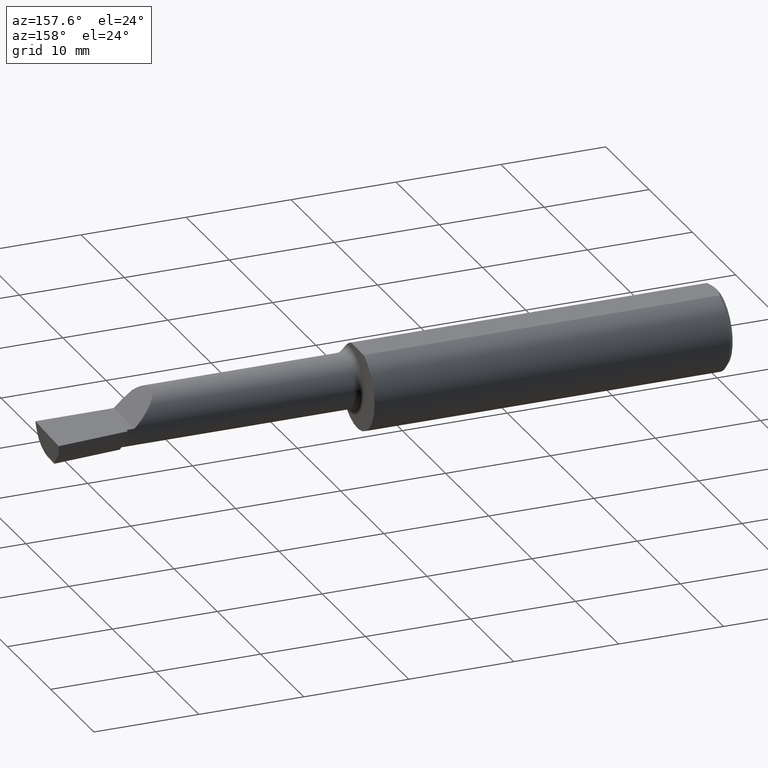
[diagram: clean part render]
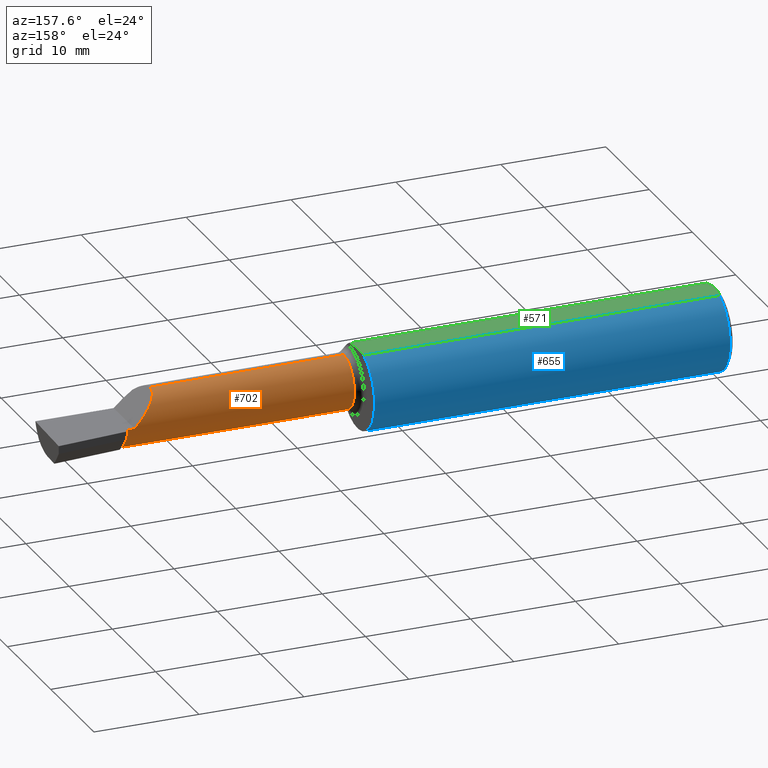
[diagram: same view with three faces highlighted in distinct colors, each labeled with its STEP entity id]
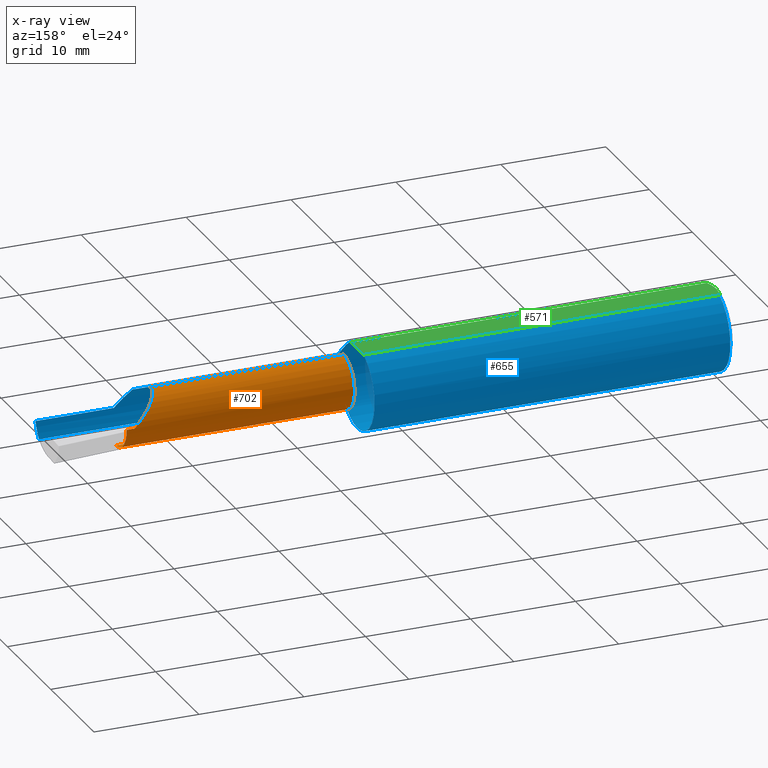
[diagram: x-ray of the same camera — body ghosted, the three highlighted faces saturated]
A machine part, auxiliary view with three faces highlighted in distinct colors.
The next image is the same camera in x-ray (body ghosted, the three faces saturated) — at least one of them is partly hidden behind the body in this view.
Their STEP definitions:

[orange] entity #702 — the highlighted cylindrical surface (edge-blend (fillet) strip) has radius 2.5375 mm, axis along (-1, -0, -0).
#5 = CARTESIAN_POINT ( 'NONE',  ( 1.375000000000000000, -0.06599999999999997535, -0.09989999999999990554 ) ) ;
#21 = ORIENTED_EDGE ( 'NONE', *, *, #39, .T. ) ;
#25 = LINE ( 'NONE', #301, #458 ) ;
#35 = VERTEX_POINT ( 'NONE', #5 ) ;
#39 = EDGE_CURVE ( 'NONE', #432, #308, #25, .T. ) ;
#62 = ORIENTED_EDGE ( 'NONE', *, *, #279, .T. ) ;
#75 = CIRCLE ( 'NONE', #510, 0.09989999999999993330 ) ;
#79 = DIRECTION ( 'NONE',  ( 1.000000000000000000, 0.0000000000000000000, 0.0000000000000000000 ) ) ;
#97 = DIRECTION ( 'NONE',  ( -1.000000000000000000, -0.0000000000000000000, -0.0000000000000000000 ) ) ;
#104 = DIRECTION ( 'NONE',  ( -1.000000000000000000, -0.0000000000000000000, -0.0000000000000000000 ) ) ;
#107 = CARTESIAN_POINT ( 'NONE',  ( 1.375000000000000000, -0.06599999999999998923, 0.09989999999999990554 ) ) ;
#126 = ORIENTED_EDGE ( 'NONE', *, *, #266, .F. ) ;
#138 = CARTESIAN_POINT ( 'NONE',  ( 2.100099999999998523, -0.007479934881072268678, 0.09989999999999990554 ) ) ;
#150 = CARTESIAN_POINT ( 'NONE',  ( 2.229999999999999982, -0.06599999999999998923, 0.0000000000000000000 ) ) ;
#179 = CARTESIAN_POINT ( 'NONE',  ( 2.200000000000000178, 0.03389999999999987468, 9.797174393178826150E-17 ) ) ;
#184 = LINE ( 'NONE', #361, #598 ) ;
#185 = AXIS2_PLACEMENT_3D ( 'NONE', #512, #104, #462 ) ;
#201 = CIRCLE ( 'NONE', #185, 0.09989999999999990554 ) ;
#203 = DIRECTION ( 'NONE',  ( 0.0000000000000000000, 0.0000000000000000000, 1.000000000000000000 ) ) ;
#232 = EDGE_CURVE ( 'NONE', #449, #35, #201, .T. ) ;
#236 = DIRECTION ( 'NONE',  ( -1.000000000000000000, -0.0000000000000000000, -0.0000000000000000000 ) ) ;
#261 = DIRECTION ( 'NONE',  ( -1.000000000000000000, -0.0000000000000000000, -0.0000000000000000000 ) ) ;
#266 = EDGE_CURVE ( 'NONE', #610, #449, #184, .T. ) ;
#279 = EDGE_CURVE ( 'NONE', #297, #35, #481, .T. ) ;
#290 = DIRECTION ( 'NONE',  ( 1.000000000000000000, 0.0000000000000000000, 0.0000000000000000000 ) ) ;
#294 = ORIENTED_EDGE ( 'NONE', *, *, #675, .T. ) ;
#297 = VERTEX_POINT ( 'NONE', #357 ) ;
#301 = CARTESIAN_POINT ( 'NONE',  ( 3.121792066109142165E-32, 0.03389999999999990937, 3.155924005931204823E-16 ) ) ;
#308 = VERTEX_POINT ( 'NONE', #406 ) ;
#338 = DIRECTION ( 'NONE',  ( -1.000000000000000000, -0.0000000000000000000, -0.0000000000000000000 ) ) ;
#343 = CARTESIAN_POINT ( 'NONE',  ( 2.229999999999999982, 0.02031953758082122655, -0.05028864118101800118 ) ) ;
#346 = CARTESIAN_POINT ( 'NONE',  ( 2.229999999999999982, -0.06599999999999998923, 0.0000000000000000000 ) ) ;
#357 = CARTESIAN_POINT ( 'NONE',  ( 2.229999999999999982, -0.06599999999999998923, -0.09990000000000000269 ) ) ;
#361 = CARTESIAN_POINT ( 'NONE',  ( 0.0000000000000000000, -0.06599999999999998923, 0.09989999999999991942 ) ) ;
#377 = VERTEX_POINT ( 'NONE', #343 ) ;
#381 = EDGE_CURVE ( 'NONE', #527, #377, #670, .T. ) ;
#391 = EDGE_CURVE ( 'NONE', #527, #297, #424, .T. ) ;
#404 = DIRECTION ( 'NONE',  ( 0.0000000000000000000, 0.0000000000000000000, 1.000000000000000000 ) ) ;
#406 = CARTESIAN_POINT ( 'NONE',  ( 2.229999999999999982, 0.03389999999999996488, 3.155924005931206302E-16 ) ) ;
#424 = CIRCLE ( 'NONE', #582, 0.09989999999999993330 ) ;
#432 = VERTEX_POINT ( 'NONE', #179 ) ;
#437 = ORIENTED_EDGE ( 'NONE', *, *, #381, .F. ) ;
#444 = DIRECTION ( 'NONE',  ( 0.0000000000000000000, -3.589139631315664435E-15, 1.000000000000000000 ) ) ;
#446 = FACE_OUTER_BOUND ( 'NONE', #461, .T. ) ;
#449 = VERTEX_POINT ( 'NONE', #107 ) ;
#456 = CARTESIAN_POINT ( 'NONE',  ( 0.0000000000000000000, -0.06599999999999998923, -0.09989999999999991942 ) ) ;
#458 = VECTOR ( 'NONE', #290, 39.37007874015748143 ) ;
#461 = EDGE_LOOP ( 'NONE', ( #603, #62, #635, #126, #294, #21, #589, #437 ) ) ;
#462 = DIRECTION ( 'NONE',  ( 0.0000000000000000000, 0.0000000000000000000, 1.000000000000000000 ) ) ;
#481 = LINE ( 'NONE', #456, #706 ) ;
#486 = CARTESIAN_POINT ( 'NONE',  ( 2.100099999999998968, -0.06599999999999998923, 0.09989999999999991942 ) ) ;
#510 = AXIS2_PLACEMENT_3D ( 'NONE', #346, #683, #404 ) ;
#512 = CARTESIAN_POINT ( 'NONE',  ( 1.375000000000000000, -0.06599999999999998923, 0.0000000000000000000 ) ) ;
#520 =( BOUNDED_CURVE ( )  B_SPLINE_CURVE ( 3, ( #486, #138, #673, #544 ),
 .UNSPECIFIED., .F., .F. ) 
 B_SPLINE_CURVE_WITH_KNOTS ( ( 4, 4 ),
 ( 0.0000000000000000000, 1.570796326794896114 ),
 .UNSPECIFIED. ) 
 CURVE ( )  GEOMETRIC_REPRESENTATION_ITEM ( )  RATIONAL_B_SPLINE_CURVE ( ( 1.000000000000000000, 0.8047378541243650485, 0.8047378541243650485, 1.000000000000000000 ) ) 
 REPRESENTATION_ITEM ( '' )  );
#527 = VERTEX_POINT ( 'NONE', #661 ) ;
#544 = CARTESIAN_POINT ( 'NONE',  ( 2.200000000000000178, 0.03389999999999987468, 9.797174393178826150E-17 ) ) ;
#556 = AXIS2_PLACEMENT_3D ( 'NONE', #150, #79, #444 ) ;
#559 = EDGE_CURVE ( 'NONE', #308, #377, #75, .T. ) ;
#566 = CYLINDRICAL_SURFACE ( 'NONE', #570, 0.09989999999999991942 ) ;
#570 = AXIS2_PLACEMENT_3D ( 'NONE', #579, #261, #203 ) ;
#579 = CARTESIAN_POINT ( 'NONE',  ( 0.0000000000000000000, -0.06599999999999998923, 0.0000000000000000000 ) ) ;
#582 = AXIS2_PLACEMENT_3D ( 'NONE', #680, #338, #638 ) ;
#589 = ORIENTED_EDGE ( 'NONE', *, *, #559, .T. ) ;
#598 = VECTOR ( 'NONE', #236, 39.37007874015748143 ) ;
#602 = CARTESIAN_POINT ( 'NONE',  ( 2.100099999999998968, -0.06599999999999998923, 0.09989999999999991942 ) ) ;
#603 = ORIENTED_EDGE ( 'NONE', *, *, #391, .T. ) ;
#610 = VERTEX_POINT ( 'NONE', #602 ) ;
#635 = ORIENTED_EDGE ( 'NONE', *, *, #232, .F. ) ;
#638 = DIRECTION ( 'NONE',  ( 0.0000000000000000000, 0.0000000000000000000, 1.000000000000000000 ) ) ;
#661 = CARTESIAN_POINT ( 'NONE',  ( 2.229999999999999982, -0.01311981690363747156, -0.08475668844224130971 ) ) ;
#670 = CIRCLE ( 'NONE', #556, 0.09989999999999991942 ) ;
#673 = CARTESIAN_POINT ( 'NONE',  ( 2.141479934881071578, 0.03389999999999987468, 0.05852006511892780122 ) ) ;
#675 = EDGE_CURVE ( 'NONE', #610, #432, #520, .T. ) ;
#680 = CARTESIAN_POINT ( 'NONE',  ( 2.229999999999999982, -0.06599999999999998923, 0.0000000000000000000 ) ) ;
#683 = DIRECTION ( 'NONE',  ( -1.000000000000000000, -0.0000000000000000000, -0.0000000000000000000 ) ) ;
#702 = ADVANCED_FACE ( 'NONE', ( #446 ), #566, .T. ) ;
#706 = VECTOR ( 'NONE', #97, 39.37007874015748143 ) ;

[blue] entity #655 — the highlighted cylindrical surface (partial cylindrical patch) has radius 3.9649 mm, axis along (-1, -0, -0).
#4 = LINE ( 'NONE', #586, #578 ) ;
#17 = ORIENTED_EDGE ( 'NONE', *, *, #584, .T. ) ;
#20 = EDGE_CURVE ( 'NONE', #376, #333, #214, .T. ) ;
#34 = DIRECTION ( 'NONE',  ( -1.000000000000000000, -0.0000000000000000000, -0.0000000000000000000 ) ) ;
#42 = LINE ( 'NONE', #351, #634 ) ;
#50 =( BOUNDED_CURVE ( )  B_SPLINE_CURVE ( 3, ( #451, #154, #554, #229 ),
 .UNSPECIFIED., .F., .T. ) 
 B_SPLINE_CURVE_WITH_KNOTS ( ( 4, 4 ),
 ( 0.9323538202062678915, 1.360746882514633382 ),
 .UNSPECIFIED. ) 
 CURVE ( )  GEOMETRIC_REPRESENTATION_ITEM ( )  RATIONAL_B_SPLINE_CURVE ( ( 1.000000000000000000, 0.9847649979006014576, 0.9847649979006014576, 1.000000000000000000 ) ) 
 REPRESENTATION_ITEM ( '' )  );
#51 = EDGE_CURVE ( 'NONE', #333, #411, #305, .T. ) ;
#53 = DIRECTION ( 'NONE',  ( -1.000000000000000000, -0.0000000000000000000, -0.0000000000000000000 ) ) ;
#60 = DIRECTION ( 'NONE',  ( 1.000000000000000000, 0.0000000000000000000, 0.0000000000000000000 ) ) ;
#61 = LINE ( 'NONE', #161, #384 ) ;
#63 = CARTESIAN_POINT ( 'NONE',  ( 2.200000000000000178, -0.1560999999999999888, 9.797174393178826150E-17 ) ) ;
#64 = CARTESIAN_POINT ( 'NONE',  ( 2.200000000000000178, -0.1560999999999999888, 9.797174393178826150E-17 ) ) ;
#80 = CIRCLE ( 'NONE', #538, 0.1560999999999999888 ) ;
#81 = CARTESIAN_POINT ( 'NONE',  ( 0.0000000000000000000, 0.0000000000000000000, 0.0000000000000000000 ) ) ;
#84 = DIRECTION ( 'NONE',  ( -1.000000000000000000, -0.0000000000000000000, -0.0000000000000000000 ) ) ;
#87 = CARTESIAN_POINT ( 'NONE',  ( 1.350000000000000089, -0.09941818181818193323, -0.1203463132961160309 ) ) ;
#89 = CARTESIAN_POINT ( 'NONE',  ( 1.375000000000000000, -0.1419939393939392003, 0.06484544066771598392 ) ) ;
#91 = CARTESIAN_POINT ( 'NONE',  ( 1.373328253254594289, -0.1419939393940947703, 0.06484544066737571444 ) ) ;
#94 = EDGE_CURVE ( 'NONE', #474, #664, #80, .T. ) ;
#100 = CARTESIAN_POINT ( 'NONE',  ( 1.371727793412431895, -0.1417279534125322760, 0.06543130843947160546 ) ) ;
#103 = ORIENTED_EDGE ( 'NONE', *, *, #626, .T. ) ;
#105 = AXIS2_PLACEMENT_3D ( 'NONE', #220, #283, #686 ) ;
#110 = CARTESIAN_POINT ( 'NONE',  ( 1.368988484139260553, -0.1409410548628159121, 0.06710952210203038892 ) ) ;
#112 = CARTESIAN_POINT ( 'NONE',  ( 1.367808428589329495, -0.1404263024719111519, 0.06818548243543454124 ) ) ;
#113 = CARTESIAN_POINT ( 'NONE',  ( 1.364666516289592790, -0.1387430930441309329, 0.07158177069671509130 ) ) ;
#114 = ORIENTED_EDGE ( 'NONE', *, *, #295, .T. ) ;
#117 = CARTESIAN_POINT ( 'NONE',  ( 1.363017092274624975, -0.1374043365808045869, 0.07413505991998654843 ) ) ;
#118 = ORIENTED_EDGE ( 'NONE', *, *, #316, .F. ) ;
#119 = CARTESIAN_POINT ( 'NONE',  ( 1.358665904659250856, -0.1330436853938332664, 0.08186319721956639150 ) ) ;
#120 = EDGE_CURVE ( 'NONE', #664, #167, #274, .T. ) ;
#123 = CARTESIAN_POINT ( 'NONE',  ( 1.356590655429605885, -0.1296720675120677513, 0.08713405786343429715 ) ) ;
#124 = CARTESIAN_POINT ( 'NONE',  ( 2.494029609882228549, -0.1561000000000000165, 6.889038570631779204E-17 ) ) ;
#128 = CARTESIAN_POINT ( 'NONE',  ( 1.353262464810605747, -0.1222000088982462124, 0.09733625715976103321 ) ) ;
#129 = CARTESIAN_POINT ( 'NONE',  ( 1.350000000000000089, -0.05756040305626776432, 0.1451000000000000068 ) ) ;
#131 = CARTESIAN_POINT ( 'NONE',  ( 1.352040506864491620, -0.1180407066556270063, 0.1023492120876696165 ) ) ;
#134 = CARTESIAN_POINT ( 'NONE',  ( 1.350000000000000089, -0.09941818181818193323, 0.1203463132961160309 ) ) ;
#136 = ORIENTED_EDGE ( 'NONE', *, *, #151, .F. ) ;
#141 = VERTEX_POINT ( 'NONE', #158 ) ;
#148 = CARTESIAN_POINT ( 'NONE',  ( 1.350415155711666371, -0.1091772789608304872, 0.1117554983051642081 ) ) ;
#151 = EDGE_CURVE ( 'NONE', #691, #376, #61, .T. ) ;
#154 = CARTESIAN_POINT ( 'NONE',  ( 2.488699611492197761, -0.1513252362624135094, -0.04441242967472185110 ) ) ;
#156 = VERTEX_POINT ( 'NONE', #63 ) ;
#158 = CARTESIAN_POINT ( 'NONE',  ( 0.01499999999999999424, 0.0000000000000000000, -0.1560999999999999888 ) ) ;
#159 = DIRECTION ( 'NONE',  ( -1.000000000000000000, -0.0000000000000000000, -0.0000000000000000000 ) ) ;
#160 = LINE ( 'NONE', #692, #452 ) ;
#161 = CARTESIAN_POINT ( 'NONE',  ( 1.802499999999999991, -0.1419939393939394501, -0.06484544066771573412 ) ) ;
#167 = VERTEX_POINT ( 'NONE', #409 ) ;
#182 = DIRECTION ( 'NONE',  ( 0.0000000000000000000, 0.0000000000000000000, -1.000000000000000000 ) ) ;
#183 = DIRECTION ( 'NONE',  ( 1.000000000000000000, 0.0000000000000000000, 0.0000000000000000000 ) ) ;
#186 = CARTESIAN_POINT ( 'NONE',  ( 1.350000000000000089, 0.0000000000000000000, 0.0000000000000000000 ) ) ;
#189 = CARTESIAN_POINT ( 'NONE',  ( 1.350000000000000311, -0.1044500923568690148, 0.1161894481365070009 ) ) ;
#200 = CARTESIAN_POINT ( 'NONE',  ( 1.802499999999999991, -0.1419939393939394501, 0.06484544066771573412 ) ) ;
#204 =( BOUNDED_CURVE ( )  B_SPLINE_CURVE ( 3, ( #64, #383, #314, #667 ),
 .UNSPECIFIED., .F., .F. ) 
 B_SPLINE_CURVE_WITH_KNOTS ( ( 4, 4 ),
 ( 4.712388980384689674, 5.140782042693055942 ),
 .UNSPECIFIED. ) 
 CURVE ( )  GEOMETRIC_REPRESENTATION_ITEM ( )  RATIONAL_B_SPLINE_CURVE ( ( 1.000000000000000000, 0.9847649979006014576, 0.9847649979006014576, 1.000000000000000000 ) ) 
 REPRESENTATION_ITEM ( '' )  );
#210 = VERTEX_POINT ( 'NONE', #124 ) ;
#212 = CARTESIAN_POINT ( 'NONE',  ( 1.350000000000000089, -0.09941818181818193323, 0.1203463132961160309 ) ) ;
#214 = B_SPLINE_CURVE_WITH_KNOTS ( 'NONE', 3,
 ( #350, #412, #352, #341, #337, #331, #327, #325, #322, #320, #317, #311, #309, #306 ),
 .UNSPECIFIED., .F., .F.,
 ( 4, 2, 2, 2, 2, 2, 4 ),
 ( 1.961289441070630364E-07, 0.0001258819157031949344, 0.0002515677024622827991, 0.0005029392759804585285, 0.001005682423016819637, 0.001508425570053180962, 0.002011168717089542504 ),
 .UNSPECIFIED. ) ;
#215 = CIRCLE ( 'NONE', #105, 0.1560999999999999888 ) ;
#220 = CARTESIAN_POINT ( 'NONE',  ( 0.01499999999999999424, 0.0000000000000000000, 0.0000000000000000000 ) ) ;
#229 = CARTESIAN_POINT ( 'NONE',  ( 2.494029609882228549, -0.1561000000000000165, 6.889038570631779204E-17 ) ) ;
#234 = ORIENTED_EDGE ( 'NONE', *, *, #476, .F. ) ;
#247 = VERTEX_POINT ( 'NONE', #460 ) ;
#249 = DIRECTION ( 'NONE',  ( 0.0000000000000000000, 0.0000000000000000000, -1.000000000000000000 ) ) ;
#257 = DIRECTION ( 'NONE',  ( 1.000000000000000000, 0.0000000000000000000, 0.0000000000000000000 ) ) ;
#262 = CARTESIAN_POINT ( 'NONE',  ( 1.350000000000000089, 0.0000000000000000000, 0.0000000000000000000 ) ) ;
#268 = DIRECTION ( 'NONE',  ( -1.000000000000000000, -0.0000000000000000000, -0.0000000000000000000 ) ) ;
#273 = ORIENTED_EDGE ( 'NONE', *, *, #120, .F. ) ;
#274 = B_SPLINE_CURVE_WITH_KNOTS ( 'NONE', 3,
 ( #134, #189, #148, #131, #128, #123, #119, #117, #113, #112, #110, #100, #91, #89 ),
 .UNSPECIFIED., .F., .F.,
 ( 4, 2, 2, 2, 2, 2, 4 ),
 ( 0.0001856976868807112932, 0.0006805519038525574115, 0.001175406120824403584, 0.001670260337796249757, 0.001917687446282172409, 0.002041401000525133735, 0.002165114554768095279 ),
 .UNSPECIFIED. ) ;
#283 = DIRECTION ( 'NONE',  ( -1.000000000000000000, -0.0000000000000000000, -0.0000000000000000000 ) ) ;
#295 = EDGE_CURVE ( 'NONE', #210, #156, #160, .T. ) ;
#303 = CIRCLE ( 'NONE', #454, 0.1560999999999999888 ) ;
#305 = CIRCLE ( 'NONE', #467, 0.1560999999999999888 ) ;
#306 = CARTESIAN_POINT ( 'NONE',  ( 1.350000000000000089, -0.09941818181818193323, -0.1203463132961160309 ) ) ;
#309 = CARTESIAN_POINT ( 'NONE',  ( 1.349999999999999867, -0.1044772303701486382, -0.1161670294028995659 ) ) ;
#310 = LINE ( 'NONE', #200, #425 ) ;
#311 = CARTESIAN_POINT ( 'NONE',  ( 1.350428134837081684, -0.1092850169809857358, -0.1116497630123361728 ) ) ;
#314 = CARTESIAN_POINT ( 'NONE',  ( 2.155587570325277369, -0.1513252362624134539, 0.04441242967472197600 ) ) ;
#316 = EDGE_CURVE ( 'NONE', #141, #247, #303, .T. ) ;
#317 = CARTESIAN_POINT ( 'NONE',  ( 1.352063943834881377, -0.1181307192064763728, -0.1022448908112566918 ) ) ;
#320 = CARTESIAN_POINT ( 'NONE',  ( 1.353264033160802571, -0.1222037927935208795, -0.09733121088759354167 ) ) ;
#322 = CARTESIAN_POINT ( 'NONE',  ( 1.356590010709525229, -0.1296703571699488189, -0.08713627291423986509 ) ) ;
#325 = CARTESIAN_POINT ( 'NONE',  ( 1.358682090340783466, -0.1330572531291641103, -0.08183785561185245860 ) ) ;
#327 = CARTESIAN_POINT ( 'NONE',  ( 1.362996561902687809, -0.1373850824029525242, -0.07416982835688742948 ) ) ;
#331 = CARTESIAN_POINT ( 'NONE',  ( 1.364650979716348411, -0.1387334617349066934, -0.07160083655282353798 ) ) ;
#333 = VERTEX_POINT ( 'NONE', #87 ) ;
#337 = CARTESIAN_POINT ( 'NONE',  ( 1.367803744158915924, -0.1404244429940954553, -0.06818941713933171500 ) ) ;
#341 = CARTESIAN_POINT ( 'NONE',  ( 1.368987086440955236, -0.1409404987250980346, -0.06711069163632696344 ) ) ;
#350 = CARTESIAN_POINT ( 'NONE',  ( 1.375000000000000000, -0.1419939393939393113, -0.06484544066771588677 ) ) ;
#351 = CARTESIAN_POINT ( 'NONE',  ( 0.0000000000000000000, 0.05756040305626779902, 0.1450999999999999512 ) ) ;
#352 = CARTESIAN_POINT ( 'NONE',  ( 1.371725699135996290, -0.1417275062431946897, -0.06543227863119814580 ) ) ;
#376 = VERTEX_POINT ( 'NONE', #448 ) ;
#383 = CARTESIAN_POINT ( 'NONE',  ( 2.177537118629004453, -0.1560999999999999333, 0.02246288137099522117 ) ) ;
#384 = VECTOR ( 'NONE', #53, 39.37007874015748143 ) ;
#390 = ORIENTED_EDGE ( 'NONE', *, *, #608, .F. ) ;
#393 = ORIENTED_EDGE ( 'NONE', *, *, #488, .T. ) ;
#399 = CARTESIAN_POINT ( 'NONE',  ( 1.350000000000000089, 0.05756040305626777820, 0.1450999999999999512 ) ) ;
#408 = CARTESIAN_POINT ( 'NONE',  ( 2.135154559332283597, -0.1419939393939393668, 0.06484544066771584514 ) ) ;
#409 = CARTESIAN_POINT ( 'NONE',  ( 1.375000000000000000, -0.1419939393939392003, 0.06484544066771598392 ) ) ;
#411 = VERTEX_POINT ( 'NONE', #399 ) ;
#412 = CARTESIAN_POINT ( 'NONE',  ( 1.373318217257565088, -0.1419939393939393668, -0.06484544066771587290 ) ) ;
#425 = VECTOR ( 'NONE', #60, 39.37007874015748143 ) ;
#429 = AXIS2_PLACEMENT_3D ( 'NONE', #81, #84, #443 ) ;
#436 = CARTESIAN_POINT ( 'NONE',  ( 2.486434241799654998, -0.1419939393939394501, -0.06484544066771573412 ) ) ;
#443 = DIRECTION ( 'NONE',  ( 0.0000000000000000000, 0.0000000000000000000, 1.000000000000000000 ) ) ;
#448 = CARTESIAN_POINT ( 'NONE',  ( 1.375000000000000000, -0.1419939393939393113, -0.06484544066771588677 ) ) ;
#451 = CARTESIAN_POINT ( 'NONE',  ( 2.486434241799654998, -0.1419939393939394501, -0.06484544066771573412 ) ) ;
#452 = VECTOR ( 'NONE', #34, 39.37007874015748143 ) ;
#454 = AXIS2_PLACEMENT_3D ( 'NONE', #553, #159, #503 ) ;
#460 = CARTESIAN_POINT ( 'NONE',  ( 0.01499999999999999424, -0.05756040305626774350, 0.1451000000000000068 ) ) ;
#467 = AXIS2_PLACEMENT_3D ( 'NONE', #262, #257, #249 ) ;
#470 = ORIENTED_EDGE ( 'NONE', *, *, #94, .F. ) ;
#474 = VERTEX_POINT ( 'NONE', #129 ) ;
#476 = EDGE_CURVE ( 'NONE', #167, #601, #310, .T. ) ;
#478 = FACE_OUTER_BOUND ( 'NONE', #543, .T. ) ;
#488 = EDGE_CURVE ( 'NONE', #156, #601, #204, .T. ) ;
#490 = ORIENTED_EDGE ( 'NONE', *, *, #690, .T. ) ;
#503 = DIRECTION ( 'NONE',  ( 0.0000000000000000000, 0.0000000000000000000, 1.000000000000000000 ) ) ;
#516 = ORIENTED_EDGE ( 'NONE', *, *, #20, .F. ) ;
#538 = AXIS2_PLACEMENT_3D ( 'NONE', #186, #183, #182 ) ;
#543 = EDGE_LOOP ( 'NONE', ( #136, #17, #114, #393, #234, #273, #470, #490, #118, #390, #103, #708, #516 ) ) ;
#553 = CARTESIAN_POINT ( 'NONE',  ( 0.01499999999999999424, 0.0000000000000000000, 0.0000000000000000000 ) ) ;
#554 = CARTESIAN_POINT ( 'NONE',  ( 2.491270569402211699, -0.1560999999999999333, -0.02246288137099513443 ) ) ;
#567 = VERTEX_POINT ( 'NONE', #682 ) ;
#578 = VECTOR ( 'NONE', #268, 39.37007874015748143 ) ;
#584 = EDGE_CURVE ( 'NONE', #691, #210, #50, .T. ) ;
#586 = CARTESIAN_POINT ( 'NONE',  ( 0.0000000000000000000, -0.05756040305626774350, 0.1451000000000000068 ) ) ;
#591 = CYLINDRICAL_SURFACE ( 'NONE', #429, 0.1560999999999999888 ) ;
#601 = VERTEX_POINT ( 'NONE', #408 ) ;
#608 = EDGE_CURVE ( 'NONE', #567, #141, #215, .T. ) ;
#626 = EDGE_CURVE ( 'NONE', #567, #411, #42, .T. ) ;
#634 = VECTOR ( 'NONE', #643, 39.37007874015748143 ) ;
#643 = DIRECTION ( 'NONE',  ( 1.000000000000000000, 0.0000000000000000000, 0.0000000000000000000 ) ) ;
#655 = ADVANCED_FACE ( 'NONE', ( #478 ), #591, .T. ) ;
#664 = VERTEX_POINT ( 'NONE', #212 ) ;
#667 = CARTESIAN_POINT ( 'NONE',  ( 2.135154559332283597, -0.1419939393939393668, 0.06484544066771584514 ) ) ;
#682 = CARTESIAN_POINT ( 'NONE',  ( 0.01499999999999999424, 0.05756040305626779902, 0.1450999999999999512 ) ) ;
#686 = DIRECTION ( 'NONE',  ( 0.0000000000000000000, 0.0000000000000000000, 1.000000000000000000 ) ) ;
#690 = EDGE_CURVE ( 'NONE', #474, #247, #4, .T. ) ;
#691 = VERTEX_POINT ( 'NONE', #436 ) ;
#692 = CARTESIAN_POINT ( 'NONE',  ( 3.121792066109142165E-32, -0.1560999999999999333, 3.155924005931204823E-16 ) ) ;
#708 = ORIENTED_EDGE ( 'NONE', *, *, #51, .F. ) ;

[green] entity #571 — the highlighted planar face has unit normal (0, -0, -1).
#4 = LINE ( 'NONE', #586, #578 ) ;
#36 = DIRECTION ( 'NONE',  ( 0.0000000000000000000, 1.000000000000000000, -1.656870447394628111E-16 ) ) ;
#42 = LINE ( 'NONE', #351, #634 ) ;
#43 = CARTESIAN_POINT ( 'NONE',  ( 0.004000000000000238608, 1.884449684559922719E-17, 0.1450999999999999790 ) ) ;
#76 = B_SPLINE_CURVE_WITH_KNOTS ( 'NONE', 3,
 ( #43, #127, #497, #700, #367, #654 ),
 .UNSPECIFIED., .F., .F.,
 ( 4, 2, 4 ),
 ( 0.002889203944960327779, 0.003632851267233511670, 0.004376498589506695562 ),
 .UNSPECIFIED. ) ;
#92 = ORIENTED_EDGE ( 'NONE', *, *, #213, .F. ) ;
#127 = CARTESIAN_POINT ( 'NONE',  ( 0.004000000000000188301, 0.009855731042683129120, 0.1450999999999999790 ) ) ;
#129 = CARTESIAN_POINT ( 'NONE',  ( 1.350000000000000089, -0.05756040305626776432, 0.1451000000000000068 ) ) ;
#166 = B_SPLINE_CURVE_WITH_KNOTS ( 'NONE', 3,
 ( #450, #405, #642, #282, #596, #225 ),
 .UNSPECIFIED., .F., .F.,
 ( 4, 2, 4 ),
 ( 0.001402484879066372495, 0.002145844412013350570, 0.002889203944960327779 ),
 .UNSPECIFIED. ) ;
#188 = EDGE_CURVE ( 'NONE', #411, #474, #374, .T. ) ;
#211 = ORIENTED_EDGE ( 'NONE', *, *, #188, .F. ) ;
#213 = EDGE_CURVE ( 'NONE', #379, #567, #76, .T. ) ;
#222 = VECTOR ( 'NONE', #619, 39.37007874015748143 ) ;
#225 = CARTESIAN_POINT ( 'NONE',  ( 0.004000000000000238608, 1.884449684559922719E-17, 0.1450999999999999790 ) ) ;
#247 = VERTEX_POINT ( 'NONE', #460 ) ;
#268 = DIRECTION ( 'NONE',  ( -1.000000000000000000, -0.0000000000000000000, -0.0000000000000000000 ) ) ;
#269 = FACE_OUTER_BOUND ( 'NONE', #594, .T. ) ;
#282 = CARTESIAN_POINT ( 'NONE',  ( 0.005011318927233133005, -0.01959047621504276041, 0.1450999999999999790 ) ) ;
#351 = CARTESIAN_POINT ( 'NONE',  ( 0.0000000000000000000, 0.05756040305626779902, 0.1450999999999999512 ) ) ;
#359 = EDGE_CURVE ( 'NONE', #247, #379, #166, .T. ) ;
#365 = ORIENTED_EDGE ( 'NONE', *, *, #626, .F. ) ;
#367 = CARTESIAN_POINT ( 'NONE',  ( 0.01158831187866387301, 0.04830813087846569376, 0.1450999999999999512 ) ) ;
#374 = LINE ( 'NONE', #574, #222 ) ;
#379 = VERTEX_POINT ( 'NONE', #640 ) ;
#399 = CARTESIAN_POINT ( 'NONE',  ( 1.350000000000000089, 0.05756040305626777820, 0.1450999999999999512 ) ) ;
#400 = CARTESIAN_POINT ( 'NONE',  ( 2.500000000000000000, 0.2061000000000000332, 0.1450999999999999512 ) ) ;
#405 = CARTESIAN_POINT ( 'NONE',  ( 0.01161840624095555018, -0.04838974479540033430, 0.1451000000000000345 ) ) ;
#411 = VERTEX_POINT ( 'NONE', #399 ) ;
#450 = CARTESIAN_POINT ( 'NONE',  ( 0.01499999999999999424, -0.05756040305626774350, 0.1451000000000000068 ) ) ;
#460 = CARTESIAN_POINT ( 'NONE',  ( 0.01499999999999999424, -0.05756040305626774350, 0.1451000000000000068 ) ) ;
#471 = DIRECTION ( 'NONE',  ( 0.0000000000000000000, -1.656870447394628111E-16, -1.000000000000000000 ) ) ;
#474 = VERTEX_POINT ( 'NONE', #129 ) ;
#497 = CARTESIAN_POINT ( 'NONE',  ( 0.005030132703184950031, 0.01970541148932063169, 0.1451000000000000068 ) ) ;
#529 = ORIENTED_EDGE ( 'NONE', *, *, #359, .F. ) ;
#550 = PLANE ( 'NONE',  #697 ) ;
#567 = VERTEX_POINT ( 'NONE', #682 ) ;
#571 = ADVANCED_FACE ( 'NONE', ( #269 ), #550, .F. ) ;
#574 = CARTESIAN_POINT ( 'NONE',  ( 1.350000000000000089, 0.2061000000000000332, 0.1450999999999999512 ) ) ;
#578 = VECTOR ( 'NONE', #268, 39.37007874015748143 ) ;
#586 = CARTESIAN_POINT ( 'NONE',  ( 0.0000000000000000000, -0.05756040305626774350, 0.1451000000000000068 ) ) ;
#594 = EDGE_LOOP ( 'NONE', ( #211, #365, #92, #529, #629 ) ) ;
#596 = CARTESIAN_POINT ( 'NONE',  ( 0.004000000000000188301, -0.009851916903761191377, 0.1450999999999999512 ) ) ;
#619 = DIRECTION ( 'NONE',  ( 0.0000000000000000000, -1.000000000000000000, 1.656870447394628111E-16 ) ) ;
#626 = EDGE_CURVE ( 'NONE', #567, #411, #42, .T. ) ;
#629 = ORIENTED_EDGE ( 'NONE', *, *, #690, .F. ) ;
#634 = VECTOR ( 'NONE', #643, 39.37007874015748143 ) ;
#640 = CARTESIAN_POINT ( 'NONE',  ( 0.004000000000000238608, 1.884449684559922719E-17, 0.1450999999999999790 ) ) ;
#642 = CARTESIAN_POINT ( 'NONE',  ( 0.008818052469297050708, -0.03886761757380372689, 0.1451000000000000068 ) ) ;
#643 = DIRECTION ( 'NONE',  ( 1.000000000000000000, 0.0000000000000000000, 0.0000000000000000000 ) ) ;
#654 = CARTESIAN_POINT ( 'NONE',  ( 0.01499999999999999424, 0.05756040305626779902, 0.1450999999999999512 ) ) ;
#682 = CARTESIAN_POINT ( 'NONE',  ( 0.01499999999999999424, 0.05756040305626779902, 0.1450999999999999512 ) ) ;
#690 = EDGE_CURVE ( 'NONE', #474, #247, #4, .T. ) ;
#697 = AXIS2_PLACEMENT_3D ( 'NONE', #400, #471, #36 ) ;
#700 = CARTESIAN_POINT ( 'NONE',  ( 0.008823987512428459190, 0.03887788046871686748, 0.1450999999999999790 ) ) ;